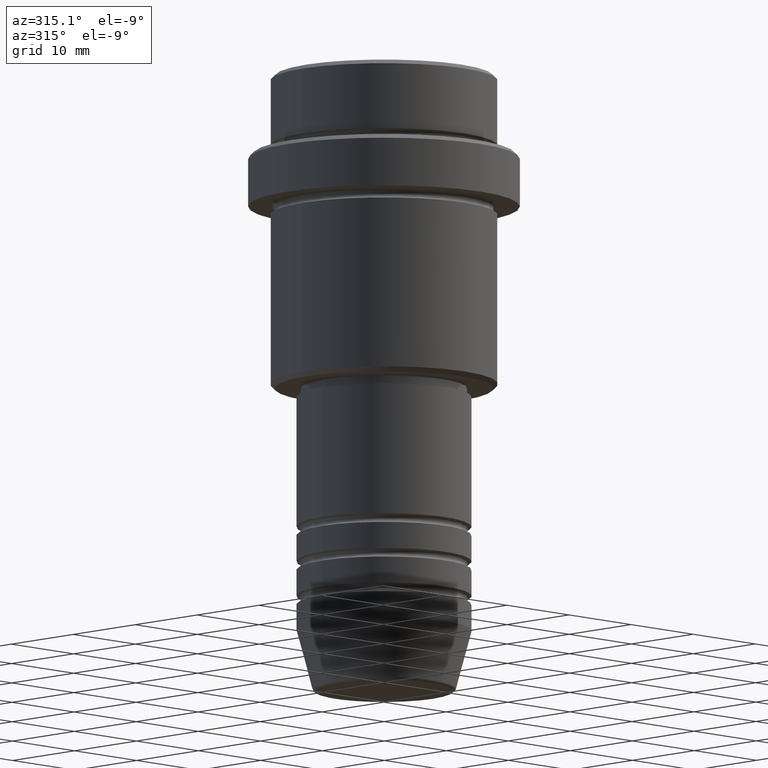
[diagram: clean part render]
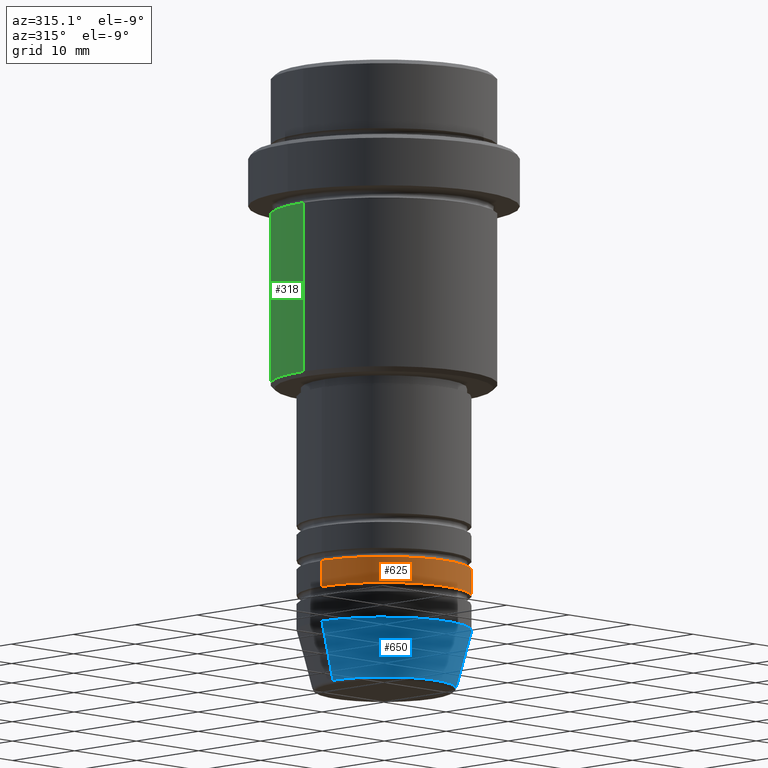
[diagram: same view with three faces highlighted in distinct colors, each labeled with its STEP entity id]
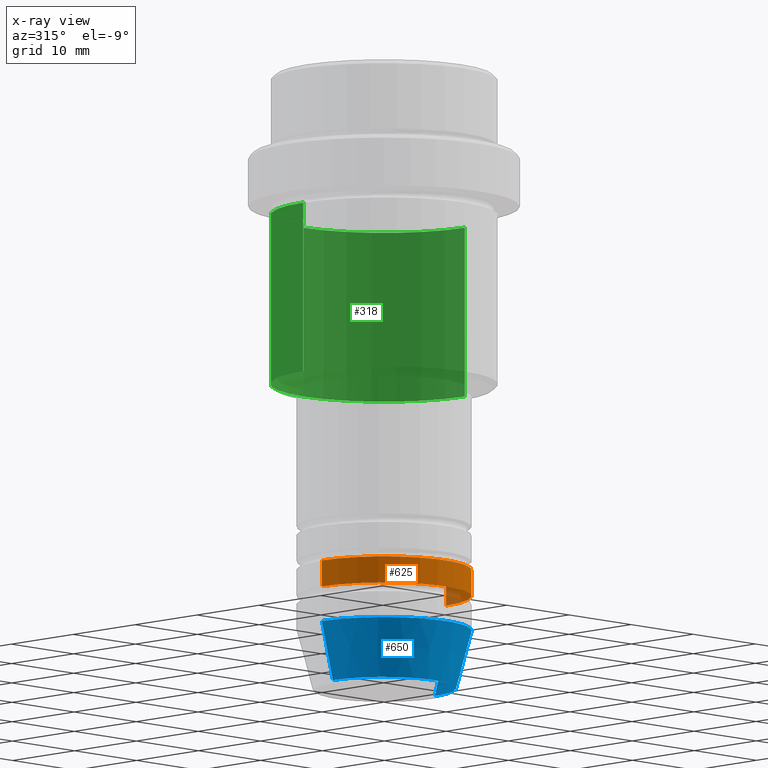
[diagram: x-ray of the same camera — body ghosted, the three highlighted faces saturated]
A machine part, auxiliary view with three faces highlighted in distinct colors.
The next image is the same camera in x-ray (body ghosted, the three faces saturated) — at least one of them is partly hidden behind the body in this view.
Their STEP definitions:

[orange] entity #625 — the highlighted cylindrical surface (partial cylindrical patch) has radius 10 mm, axis along (-0, -0, 1).
#23 = LINE ( 'NONE', #906, #792 ) ;
#105 = EDGE_LOOP ( 'NONE', ( #1310, #503, #1302, #145 ) ) ;
#137 = VERTEX_POINT ( 'NONE', #441 ) ;
#142 = EDGE_CURVE ( 'NONE', #137, #1265, #457, .T. ) ;
#145 = ORIENTED_EDGE ( 'NONE', *, *, #1307, .F. ) ;
#244 = DIRECTION ( 'NONE',  ( -0.000000000000000000, -0.000000000000000000, 1.000000000000000000 ) ) ;
#249 = EDGE_CURVE ( 'NONE', #1100, #137, #550, .T. ) ;
#372 = CARTESIAN_POINT ( 'NONE',  ( 0.000000000000000000, 0.000000000000000000, -59.99999999999988631 ) ) ;
#410 = DIRECTION ( 'NONE',  ( -0.000000000000000000, -0.000000000000000000, 1.000000000000000000 ) ) ;
#441 = CARTESIAN_POINT ( 'NONE',  ( 10.00000000000000000, 0.000000000000000000, -59.99999999999988631 ) ) ;
#453 = CYLINDRICAL_SURFACE ( 'NONE', #1253, 10.00000000000000000 ) ;
#457 = LINE ( 'NONE', #676, #1223 ) ;
#478 = CARTESIAN_POINT ( 'NONE',  ( 10.00000000000000000, 0.000000000000000000, -56.99999999999988631 ) ) ;
#498 = CARTESIAN_POINT ( 'NONE',  ( 0.000000000000000000, 0.000000000000000000, -56.99999999999988631 ) ) ;
#503 = ORIENTED_EDGE ( 'NONE', *, *, #249, .T. ) ;
#550 = CIRCLE ( 'NONE', #1365, 10.00000000000000000 ) ;
#625 = ADVANCED_FACE ( 'NONE', ( #1091 ), #453, .T. ) ;
#661 = CARTESIAN_POINT ( 'NONE',  ( -10.00000000000000000, 1.224646799147353256E-15, -59.99999999999988631 ) ) ;
#669 = AXIS2_PLACEMENT_3D ( 'NONE', #498, #1045, #942 ) ;
#676 = CARTESIAN_POINT ( 'NONE',  ( 10.00000000000000000, 0.000000000000000000, 0.000000000000000000 ) ) ;
#764 = DIRECTION ( 'NONE',  ( 1.000000000000000000, 0.000000000000000000, 0.000000000000000000 ) ) ;
#773 = DIRECTION ( 'NONE',  ( -0.000000000000000000, -0.000000000000000000, 1.000000000000000000 ) ) ;
#792 = VECTOR ( 'NONE', #244, 1000.000000000000000 ) ;
#906 = CARTESIAN_POINT ( 'NONE',  ( -10.00000000000000000, 1.224646799147353256E-15, 0.000000000000000000 ) ) ;
#942 = DIRECTION ( 'NONE',  ( 1.000000000000000000, 0.000000000000000000, 0.000000000000000000 ) ) ;
#1010 = DIRECTION ( 'NONE',  ( -0.000000000000000000, -0.000000000000000000, 1.000000000000000000 ) ) ;
#1025 = VERTEX_POINT ( 'NONE', #1047 ) ;
#1045 = DIRECTION ( 'NONE',  ( -0.000000000000000000, -0.000000000000000000, 1.000000000000000000 ) ) ;
#1046 = CIRCLE ( 'NONE', #669, 10.00000000000000000 ) ;
#1047 = CARTESIAN_POINT ( 'NONE',  ( -10.00000000000000000, 1.224646799147353256E-15, -56.99999999999988631 ) ) ;
#1057 = DIRECTION ( 'NONE',  ( 1.000000000000000000, 0.000000000000000000, 0.000000000000000000 ) ) ;
#1091 = FACE_OUTER_BOUND ( 'NONE', #105, .T. ) ;
#1100 = VERTEX_POINT ( 'NONE', #661 ) ;
#1107 = CARTESIAN_POINT ( 'NONE',  ( 0.000000000000000000, 0.000000000000000000, 0.000000000000000000 ) ) ;
#1223 = VECTOR ( 'NONE', #1010, 1000.000000000000000 ) ;
#1236 = EDGE_CURVE ( 'NONE', #1100, #1025, #23, .T. ) ;
#1253 = AXIS2_PLACEMENT_3D ( 'NONE', #1107, #773, #764 ) ;
#1265 = VERTEX_POINT ( 'NONE', #478 ) ;
#1302 = ORIENTED_EDGE ( 'NONE', *, *, #142, .T. ) ;
#1307 = EDGE_CURVE ( 'NONE', #1025, #1265, #1046, .T. ) ;
#1310 = ORIENTED_EDGE ( 'NONE', *, *, #1236, .F. ) ;
#1365 = AXIS2_PLACEMENT_3D ( 'NONE', #372, #410, #1057 ) ;

[blue] entity #650 — the highlighted conical surface has half-angle 15 deg.
#26 = VERTEX_POINT ( 'NONE', #88 ) ;
#83 = DIRECTION ( 'NONE',  ( 1.000000000000000000, 0.000000000000000000, 0.000000000000000000 ) ) ;
#88 = CARTESIAN_POINT ( 'NONE',  ( 8.223655072137185940, 0.000000000000000000, -70.62940952255127058 ) ) ;
#136 = ORIENTED_EDGE ( 'NONE', *, *, #382, .T. ) ;
#140 = ORIENTED_EDGE ( 'NONE', *, *, #793, .F. ) ;
#141 = DIRECTION ( 'NONE',  ( 1.000000000000000000, 0.000000000000000000, 0.000000000000000000 ) ) ;
#158 = VERTEX_POINT ( 'NONE', #750 ) ;
#268 = CARTESIAN_POINT ( 'NONE',  ( 0.000000000000000000, 0.000000000000000000, -64.00000000000000000 ) ) ;
#289 = CARTESIAN_POINT ( 'NONE',  ( 0.000000000000000000, 0.000000000000000000, -70.62940952255127058 ) ) ;
#325 = ORIENTED_EDGE ( 'NONE', *, *, #1099, .F. ) ;
#327 = LINE ( 'NONE', #413, #1349 ) ;
#382 = EDGE_CURVE ( 'NONE', #26, #677, #692, .T. ) ;
#389 = DIRECTION ( 'NONE',  ( 0.2588190451025214611, 0.000000000000000000, 0.9659258262890679791 ) ) ;
#399 = AXIS2_PLACEMENT_3D ( 'NONE', #1301, #1212, #639 ) ;
#413 = CARTESIAN_POINT ( 'NONE',  ( -10.00000000000000000, 1.224646799147353256E-15, -64.00000000000000000 ) ) ;
#507 = CARTESIAN_POINT ( 'NONE',  ( -8.223655072137185940, 1.115877042642911659E-15, -70.62940952255127058 ) ) ;
#530 = CIRCLE ( 'NONE', #845, 8.223655072137185940 ) ;
#585 = DIRECTION ( 'NONE',  ( -0.000000000000000000, -0.000000000000000000, 1.000000000000000000 ) ) ;
#639 = DIRECTION ( 'NONE',  ( 1.000000000000000000, 0.000000000000000000, 0.000000000000000000 ) ) ;
#650 = ADVANCED_FACE ( 'NONE', ( #1192 ), #1021, .T. ) ;
#652 = CARTESIAN_POINT ( 'NONE',  ( 10.00000000000000000, 0.000000000000000000, -64.00000000000000000 ) ) ;
#677 = VERTEX_POINT ( 'NONE', #978 ) ;
#692 = LINE ( 'NONE', #652, #1160 ) ;
#696 = CIRCLE ( 'NONE', #1276, 10.00000000000000000 ) ;
#750 = CARTESIAN_POINT ( 'NONE',  ( -10.00000000000000000, 1.224646799147353256E-15, -64.00000000000000000 ) ) ;
#793 = EDGE_CURVE ( 'NONE', #158, #677, #696, .T. ) ;
#834 = DIRECTION ( 'NONE',  ( -0.000000000000000000, -0.000000000000000000, 1.000000000000000000 ) ) ;
#845 = AXIS2_PLACEMENT_3D ( 'NONE', #289, #834, #83 ) ;
#957 = EDGE_CURVE ( 'NONE', #1011, #26, #530, .T. ) ;
#967 = DIRECTION ( 'NONE',  ( -0.2588190451025214611, 3.169619151431774186E-17, 0.9659258262890679791 ) ) ;
#978 = CARTESIAN_POINT ( 'NONE',  ( 10.00000000000000000, 0.000000000000000000, -64.00000000000000000 ) ) ;
#1011 = VERTEX_POINT ( 'NONE', #507 ) ;
#1021 = CONICAL_SURFACE ( 'NONE', #399, 10.00000000000000000, 0.2617993877991502405 ) ;
#1099 = EDGE_CURVE ( 'NONE', #1011, #158, #327, .T. ) ;
#1148 = ORIENTED_EDGE ( 'NONE', *, *, #957, .T. ) ;
#1160 = VECTOR ( 'NONE', #389, 1000.000000000000114 ) ;
#1192 = FACE_OUTER_BOUND ( 'NONE', #1333, .T. ) ;
#1212 = DIRECTION ( 'NONE',  ( -0.000000000000000000, -0.000000000000000000, 1.000000000000000000 ) ) ;
#1276 = AXIS2_PLACEMENT_3D ( 'NONE', #268, #585, #141 ) ;
#1301 = CARTESIAN_POINT ( 'NONE',  ( 0.000000000000000000, 0.000000000000000000, -64.00000000000000000 ) ) ;
#1333 = EDGE_LOOP ( 'NONE', ( #325, #1148, #136, #140 ) ) ;
#1349 = VECTOR ( 'NONE', #967, 1000.000000000000114 ) ;

[green] entity #318 — the highlighted cylindrical surface (partial cylindrical patch) has radius 13 mm, axis along (-0, -0, 1).
#12 = DIRECTION ( 'NONE',  ( -0.000000000000000000, -0.000000000000000000, 1.000000000000000000 ) ) ;
#38 = LINE ( 'NONE', #1337, #307 ) ;
#69 = CARTESIAN_POINT ( 'NONE',  ( 13.00000000000000000, 0.000000000000000000, -16.00000000000000000 ) ) ;
#84 = ORIENTED_EDGE ( 'NONE', *, *, #1206, .F. ) ;
#94 = CARTESIAN_POINT ( 'NONE',  ( -13.00000000000000000, 1.592040838891559095E-15, -35.50000000000000711 ) ) ;
#113 = DIRECTION ( 'NONE',  ( 1.000000000000000000, 0.000000000000000000, 0.000000000000000000 ) ) ;
#159 = DIRECTION ( 'NONE',  ( -0.000000000000000000, -0.000000000000000000, 1.000000000000000000 ) ) ;
#171 = CIRCLE ( 'NONE', #1042, 13.00000000000000000 ) ;
#207 = DIRECTION ( 'NONE',  ( -0.000000000000000000, -0.000000000000000000, 1.000000000000000000 ) ) ;
#230 = ORIENTED_EDGE ( 'NONE', *, *, #632, .F. ) ;
#259 = CARTESIAN_POINT ( 'NONE',  ( 0.000000000000000000, 0.000000000000000000, -35.50000000000000711 ) ) ;
#265 = VERTEX_POINT ( 'NONE', #1156 ) ;
#270 = EDGE_CURVE ( 'NONE', #807, #1077, #1014, .T. ) ;
#307 = VECTOR ( 'NONE', #1237, 1000.000000000000000 ) ;
#318 = ADVANCED_FACE ( 'NONE', ( #928 ), #1370, .T. ) ;
#560 = LINE ( 'NONE', #1004, #1116 ) ;
#581 = CARTESIAN_POINT ( 'NONE',  ( 13.00000000000000000, 0.000000000000000000, -35.50000000000000711 ) ) ;
#586 = EDGE_LOOP ( 'NONE', ( #975, #780, #230, #84 ) ) ;
#588 = DIRECTION ( 'NONE',  ( 1.000000000000000000, 0.000000000000000000, 0.000000000000000000 ) ) ;
#598 = AXIS2_PLACEMENT_3D ( 'NONE', #683, #159, #588 ) ;
#632 = EDGE_CURVE ( 'NONE', #905, #265, #171, .T. ) ;
#638 = AXIS2_PLACEMENT_3D ( 'NONE', #259, #1386, #769 ) ;
#683 = CARTESIAN_POINT ( 'NONE',  ( 0.000000000000000000, 0.000000000000000000, 0.000000000000000000 ) ) ;
#704 = EDGE_CURVE ( 'NONE', #1077, #265, #560, .T. ) ;
#769 = DIRECTION ( 'NONE',  ( -1.000000000000000000, 0.000000000000000000, 0.000000000000000000 ) ) ;
#780 = ORIENTED_EDGE ( 'NONE', *, *, #704, .T. ) ;
#807 = VERTEX_POINT ( 'NONE', #581 ) ;
#905 = VERTEX_POINT ( 'NONE', #69 ) ;
#928 = FACE_OUTER_BOUND ( 'NONE', #586, .T. ) ;
#975 = ORIENTED_EDGE ( 'NONE', *, *, #270, .T. ) ;
#1004 = CARTESIAN_POINT ( 'NONE',  ( -13.00000000000000000, 1.592040838891559095E-15, 0.000000000000000000 ) ) ;
#1014 = CIRCLE ( 'NONE', #638, 13.00000000000000000 ) ;
#1042 = AXIS2_PLACEMENT_3D ( 'NONE', #1098, #207, #113 ) ;
#1077 = VERTEX_POINT ( 'NONE', #94 ) ;
#1098 = CARTESIAN_POINT ( 'NONE',  ( 0.000000000000000000, 0.000000000000000000, -16.00000000000000000 ) ) ;
#1116 = VECTOR ( 'NONE', #12, 1000.000000000000000 ) ;
#1156 = CARTESIAN_POINT ( 'NONE',  ( -13.00000000000000000, 1.592040838891559095E-15, -16.00000000000000000 ) ) ;
#1206 = EDGE_CURVE ( 'NONE', #807, #905, #38, .T. ) ;
#1237 = DIRECTION ( 'NONE',  ( -0.000000000000000000, -0.000000000000000000, 1.000000000000000000 ) ) ;
#1337 = CARTESIAN_POINT ( 'NONE',  ( 13.00000000000000000, 0.000000000000000000, 0.000000000000000000 ) ) ;
#1370 = CYLINDRICAL_SURFACE ( 'NONE', #598, 13.00000000000000000 ) ;
#1386 = DIRECTION ( 'NONE',  ( -0.000000000000000000, -0.000000000000000000, 1.000000000000000000 ) ) ;